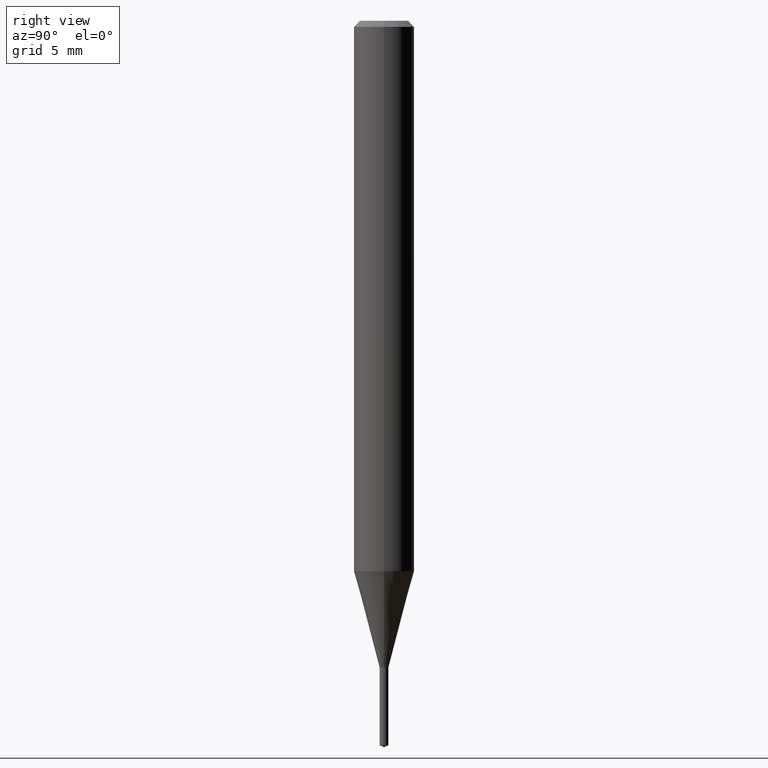
[diagram: clean part render]
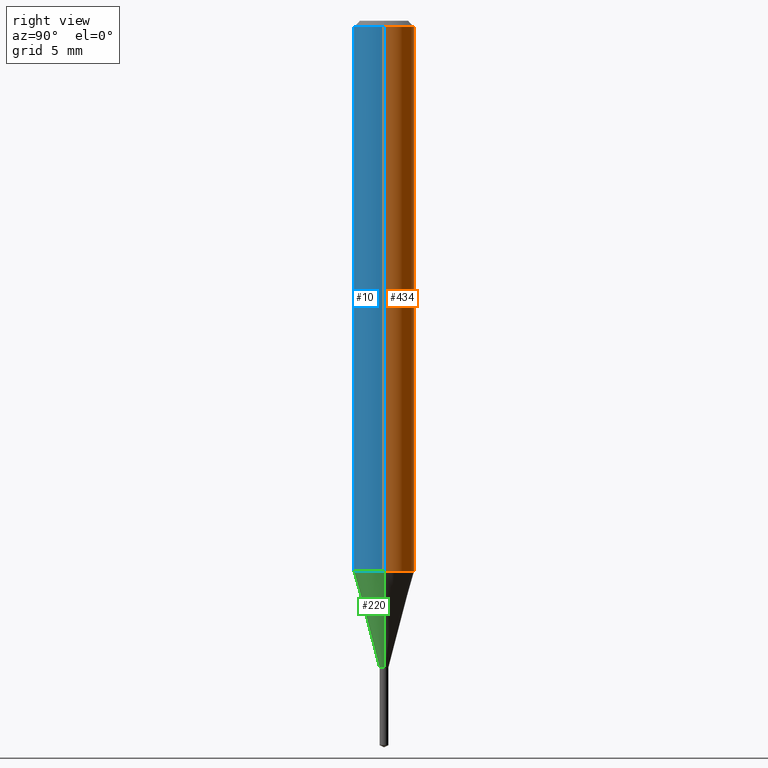
[diagram: same view with three faces highlighted in distinct colors, each labeled with its STEP entity id]
A machine part, right view with three faces highlighted in distinct colors.
Their STEP definitions:

[orange] entity #434 — the highlighted cylindrical surface (edge-blend (fillet) strip) has radius 1.5875 mm, axis along (-0, 0, 1).
#27 = DIRECTION ( 'NONE',  ( -2.445468806185136597E-29, 3.491481338843145583E-15, 1.000000000000000000 ) ) ;
#32 = AXIS2_PLACEMENT_3D ( 'NONE', #371, #27, #482 ) ;
#39 = VERTEX_POINT ( 'NONE', #179 ) ;
#44 = VECTOR ( 'NONE', #484, 39.37007874015748143 ) ;
#52 = EDGE_CURVE ( 'NONE', #208, #39, #451, .T. ) ;
#66 = LINE ( 'NONE', #481, #44 ) ;
#77 = DIRECTION ( 'NONE',  ( -2.445468806185136597E-29, 3.491481338843145583E-15, 1.000000000000000000 ) ) ;
#88 = VECTOR ( 'NONE', #378, 39.37007874015748143 ) ;
#115 = LINE ( 'NONE', #456, #88 ) ;
#158 = AXIS2_PLACEMENT_3D ( 'NONE', #195, #77, #248 ) ;
#159 = CARTESIAN_POINT ( 'NONE',  ( 0.06250000000000000000, -4.800786840909313294E-16, -0.01250000000000008396 ) ) ;
#161 = EDGE_CURVE ( 'NONE', #39, #375, #115, .T. ) ;
#167 = CIRCLE ( 'NONE', #158, 0.06250000000000000000 ) ;
#170 = EDGE_CURVE ( 'NONE', #372, #375, #167, .T. ) ;
#179 = CARTESIAN_POINT ( 'NONE',  ( -0.06250000000000013878, -3.522705924938723995E-15, -1.136135281795070506 ) ) ;
#192 = DIRECTION ( 'NONE',  ( -2.445468806185136597E-29, 3.491481338843145583E-15, 1.000000000000000000 ) ) ;
#195 = CARTESIAN_POINT ( 'NONE',  ( 3.056836007731441415E-31, -4.364351673553961684E-17, -0.01250000000000008396 ) ) ;
#208 = VERTEX_POINT ( 'NONE', #309 ) ;
#213 = CARTESIAN_POINT ( 'NONE',  ( -0.06250000000000000000, -1.561130115912099878E-15, -0.01250000000000008396 ) ) ;
#222 = EDGE_LOOP ( 'NONE', ( #457, #446, #314, #304 ) ) ;
#248 = DIRECTION ( 'NONE',  ( 1.000000000000000000, -6.982962677686266711E-15, 0.000000000000000000 ) ) ;
#268 = CARTESIAN_POINT ( 'NONE',  ( 0.000000000000000000, 0.000000000000000000, 0.000000000000000000 ) ) ;
#272 = DIRECTION ( 'NONE',  ( 1.000000000000000000, -6.982962677686266711E-15, 4.876176775795935793E-29 ) ) ;
#302 = EDGE_CURVE ( 'NONE', #208, #372, #66, .T. ) ;
#304 = ORIENTED_EDGE ( 'NONE', *, *, #302, .F. ) ;
#307 = CYLINDRICAL_SURFACE ( 'NONE', #391, 0.06250000000000006939 ) ;
#309 = CARTESIAN_POINT ( 'NONE',  ( 0.06250000000000013878, -4.403230302144179464E-15, -1.136135281795070506 ) ) ;
#314 = ORIENTED_EDGE ( 'NONE', *, *, #170, .F. ) ;
#371 = CARTESIAN_POINT ( 'NONE',  ( 2.778383391236205405E-29, -3.966795134788787794E-15, -1.136135281795070506 ) ) ;
#372 = VERTEX_POINT ( 'NONE', #159 ) ;
#375 = VERTEX_POINT ( 'NONE', #213 ) ;
#378 = DIRECTION ( 'NONE',  ( -2.445468806185136877E-29, 3.491481338843145188E-15, 1.000000000000000000 ) ) ;
#391 = AXIS2_PLACEMENT_3D ( 'NONE', #268, #192, #272 ) ;
#434 = ADVANCED_FACE ( 'NONE', ( #480 ), #307, .T. ) ;
#446 = ORIENTED_EDGE ( 'NONE', *, *, #161, .T. ) ;
#451 = CIRCLE ( 'NONE', #32, 0.06250000000000013878 ) ;
#456 = CARTESIAN_POINT ( 'NONE',  ( -0.06250000000000006939, 4.440892098500631092E-16, -3.074334431409319267E-30 ) ) ;
#457 = ORIENTED_EDGE ( 'NONE', *, *, #52, .T. ) ;
#480 = FACE_OUTER_BOUND ( 'NONE', #222, .T. ) ;
#481 = CARTESIAN_POINT ( 'NONE',  ( 0.06250000000000006939, -4.364351673553921624E-16, 3.047610484872463374E-30 ) ) ;
#482 = DIRECTION ( 'NONE',  ( 1.000000000000000000, -6.982962677686270655E-15, 0.000000000000000000 ) ) ;
#484 = DIRECTION ( 'NONE',  ( -2.445468806185136877E-29, 3.491481338843145188E-15, 1.000000000000000000 ) ) ;

[blue] entity #10 — the highlighted cylindrical surface (edge-blend (fillet) strip) has radius 1.5875 mm, axis along (-0, 0, 1).
#7 = CIRCLE ( 'NONE', #129, 0.06250000000000000000 ) ;
#10 = ADVANCED_FACE ( 'NONE', ( #369 ), #194, .T. ) ;
#11 = DIRECTION ( 'NONE',  ( 1.000000000000000000, -6.982962677686266711E-15, 0.000000000000000000 ) ) ;
#21 = DIRECTION ( 'NONE',  ( 1.000000000000000000, -6.982962677686270655E-15, 0.000000000000000000 ) ) ;
#23 = EDGE_CURVE ( 'NONE', #39, #208, #128, .T. ) ;
#39 = VERTEX_POINT ( 'NONE', #179 ) ;
#44 = VECTOR ( 'NONE', #484, 39.37007874015748143 ) ;
#66 = LINE ( 'NONE', #481, #44 ) ;
#87 = ORIENTED_EDGE ( 'NONE', *, *, #459, .F. ) ;
#88 = VECTOR ( 'NONE', #378, 39.37007874015748143 ) ;
#115 = LINE ( 'NONE', #456, #88 ) ;
#128 = CIRCLE ( 'NONE', #216, 0.06250000000000013878 ) ;
#129 = AXIS2_PLACEMENT_3D ( 'NONE', #468, #465, #11 ) ;
#145 = CARTESIAN_POINT ( 'NONE',  ( 0.000000000000000000, 0.000000000000000000, 0.000000000000000000 ) ) ;
#152 = DIRECTION ( 'NONE',  ( 1.000000000000000000, -6.982962677686266711E-15, 4.876176775795935793E-29 ) ) ;
#159 = CARTESIAN_POINT ( 'NONE',  ( 0.06250000000000000000, -4.800786840909313294E-16, -0.01250000000000008396 ) ) ;
#161 = EDGE_CURVE ( 'NONE', #39, #375, #115, .T. ) ;
#179 = CARTESIAN_POINT ( 'NONE',  ( -0.06250000000000013878, -3.522705924938723995E-15, -1.136135281795070506 ) ) ;
#194 = CYLINDRICAL_SURFACE ( 'NONE', #244, 0.06250000000000006939 ) ;
#208 = VERTEX_POINT ( 'NONE', #309 ) ;
#213 = CARTESIAN_POINT ( 'NONE',  ( -0.06250000000000000000, -1.561130115912099878E-15, -0.01250000000000008396 ) ) ;
#216 = AXIS2_PLACEMENT_3D ( 'NONE', #279, #365, #21 ) ;
#244 = AXIS2_PLACEMENT_3D ( 'NONE', #145, #489, #152 ) ;
#279 = CARTESIAN_POINT ( 'NONE',  ( 2.778383391236205405E-29, -3.966795134788787794E-15, -1.136135281795070506 ) ) ;
#302 = EDGE_CURVE ( 'NONE', #208, #372, #66, .T. ) ;
#309 = CARTESIAN_POINT ( 'NONE',  ( 0.06250000000000013878, -4.403230302144179464E-15, -1.136135281795070506 ) ) ;
#365 = DIRECTION ( 'NONE',  ( -2.445468806185136597E-29, 3.491481338843145583E-15, 1.000000000000000000 ) ) ;
#369 = FACE_OUTER_BOUND ( 'NONE', #488, .T. ) ;
#372 = VERTEX_POINT ( 'NONE', #159 ) ;
#375 = VERTEX_POINT ( 'NONE', #213 ) ;
#378 = DIRECTION ( 'NONE',  ( -2.445468806185136877E-29, 3.491481338843145188E-15, 1.000000000000000000 ) ) ;
#410 = ORIENTED_EDGE ( 'NONE', *, *, #23, .T. ) ;
#440 = ORIENTED_EDGE ( 'NONE', *, *, #302, .T. ) ;
#443 = ORIENTED_EDGE ( 'NONE', *, *, #161, .F. ) ;
#456 = CARTESIAN_POINT ( 'NONE',  ( -0.06250000000000006939, 4.440892098500631092E-16, -3.074334431409319267E-30 ) ) ;
#459 = EDGE_CURVE ( 'NONE', #375, #372, #7, .T. ) ;
#465 = DIRECTION ( 'NONE',  ( -2.445468806185136597E-29, 3.491481338843145583E-15, 1.000000000000000000 ) ) ;
#468 = CARTESIAN_POINT ( 'NONE',  ( 3.056836007731441415E-31, -4.364351673553961684E-17, -0.01250000000000008396 ) ) ;
#481 = CARTESIAN_POINT ( 'NONE',  ( 0.06250000000000006939, -4.364351673553921624E-16, 3.047610484872463374E-30 ) ) ;
#484 = DIRECTION ( 'NONE',  ( -2.445468806185136877E-29, 3.491481338843145188E-15, 1.000000000000000000 ) ) ;
#488 = EDGE_LOOP ( 'NONE', ( #443, #410, #440, #87 ) ) ;
#489 = DIRECTION ( 'NONE',  ( -2.445468806185136597E-29, 3.491481338843145583E-15, 1.000000000000000000 ) ) ;

[green] entity #220 — the highlighted conical surface has half-angle 15 deg.
#19 = AXIS2_PLACEMENT_3D ( 'NONE', #390, #42, #211 ) ;
#21 = DIRECTION ( 'NONE',  ( 1.000000000000000000, -6.982962677686270655E-15, 0.000000000000000000 ) ) ;
#23 = EDGE_CURVE ( 'NONE', #39, #208, #128, .T. ) ;
#29 = DIRECTION ( 'NONE',  ( 1.000000000000000000, -6.982962677686225690E-15, 0.000000000000000000 ) ) ;
#39 = VERTEX_POINT ( 'NONE', #179 ) ;
#42 = DIRECTION ( 'NONE',  ( -2.445468806185136597E-29, 3.491481338843145583E-15, 1.000000000000000000 ) ) ;
#53 = CARTESIAN_POINT ( 'NONE',  ( 0.008999999999999999320, -4.726767436525850023E-15, -1.335800000000000098 ) ) ;
#58 = CARTESIAN_POINT ( 'NONE',  ( -0.008999999999999999320, -4.370756176313212753E-15, -1.335800000000000098 ) ) ;
#63 = DIRECTION ( 'NONE',  ( -0.2588190451025280114, 5.211531920934590485E-15, 0.9659258262890662028 ) ) ;
#81 = ORIENTED_EDGE ( 'NONE', *, *, #253, .T. ) ;
#128 = CIRCLE ( 'NONE', #216, 0.06250000000000013878 ) ;
#132 = EDGE_CURVE ( 'NONE', #229, #299, #380, .T. ) ;
#135 = VECTOR ( 'NONE', #63, 39.37007874015748854 ) ;
#137 = DIRECTION ( 'NONE',  ( 0.2588190451025280114, 1.565188264969568522E-15, 0.9659258262890662028 ) ) ;
#138 = ORIENTED_EDGE ( 'NONE', *, *, #287, .F. ) ;
#179 = CARTESIAN_POINT ( 'NONE',  ( -0.06250000000000013878, -3.522705924938723995E-15, -1.136135281795070506 ) ) ;
#208 = VERTEX_POINT ( 'NONE', #309 ) ;
#211 = DIRECTION ( 'NONE',  ( 1.000000000000000000, -6.982962677686225690E-15, 0.000000000000000000 ) ) ;
#216 = AXIS2_PLACEMENT_3D ( 'NONE', #279, #365, #21 ) ;
#220 = ADVANCED_FACE ( 'NONE', ( #449 ), #270, .T. ) ;
#224 = LINE ( 'NONE', #53, #283 ) ;
#229 = VERTEX_POINT ( 'NONE', #58 ) ;
#234 = CARTESIAN_POINT ( 'NONE',  ( -0.008999999999999999320, -4.599971926208265243E-15, -1.335800000000000098 ) ) ;
#253 = EDGE_CURVE ( 'NONE', #299, #208, #224, .T. ) ;
#270 = CONICAL_SURFACE ( 'NONE', #477, 0.008999999999999999320, 0.2617993877991570129 ) ;
#279 = CARTESIAN_POINT ( 'NONE',  ( 2.778383391236205405E-29, -3.966795134788787794E-15, -1.136135281795070506 ) ) ;
#283 = VECTOR ( 'NONE', #137, 39.37007874015748854 ) ;
#287 = EDGE_CURVE ( 'NONE', #229, #39, #408, .T. ) ;
#299 = VERTEX_POINT ( 'NONE', #339 ) ;
#309 = CARTESIAN_POINT ( 'NONE',  ( 0.06250000000000013878, -4.403230302144179464E-15, -1.136135281795070506 ) ) ;
#337 = DIRECTION ( 'NONE',  ( -2.445468806185136597E-29, 3.491481338843145583E-15, 1.000000000000000000 ) ) ;
#339 = CARTESIAN_POINT ( 'NONE',  ( 0.008999999999999999320, -4.726767436525850023E-15, -1.335800000000000098 ) ) ;
#350 = EDGE_LOOP ( 'NONE', ( #138, #425, #81, #474 ) ) ;
#365 = DIRECTION ( 'NONE',  ( -2.445468806185136597E-29, 3.491481338843145583E-15, 1.000000000000000000 ) ) ;
#380 = CIRCLE ( 'NONE', #19, 0.008999999999999999320 ) ;
#390 = CARTESIAN_POINT ( 'NONE',  ( 3.266657231302105794E-29, -4.663920772426673528E-15, -1.335800000000000098 ) ) ;
#401 = CARTESIAN_POINT ( 'NONE',  ( 3.266657231302105794E-29, -4.663920772426673528E-15, -1.335800000000000098 ) ) ;
#408 = LINE ( 'NONE', #234, #135 ) ;
#425 = ORIENTED_EDGE ( 'NONE', *, *, #132, .T. ) ;
#449 = FACE_OUTER_BOUND ( 'NONE', #350, .T. ) ;
#474 = ORIENTED_EDGE ( 'NONE', *, *, #23, .F. ) ;
#477 = AXIS2_PLACEMENT_3D ( 'NONE', #401, #337, #29 ) ;